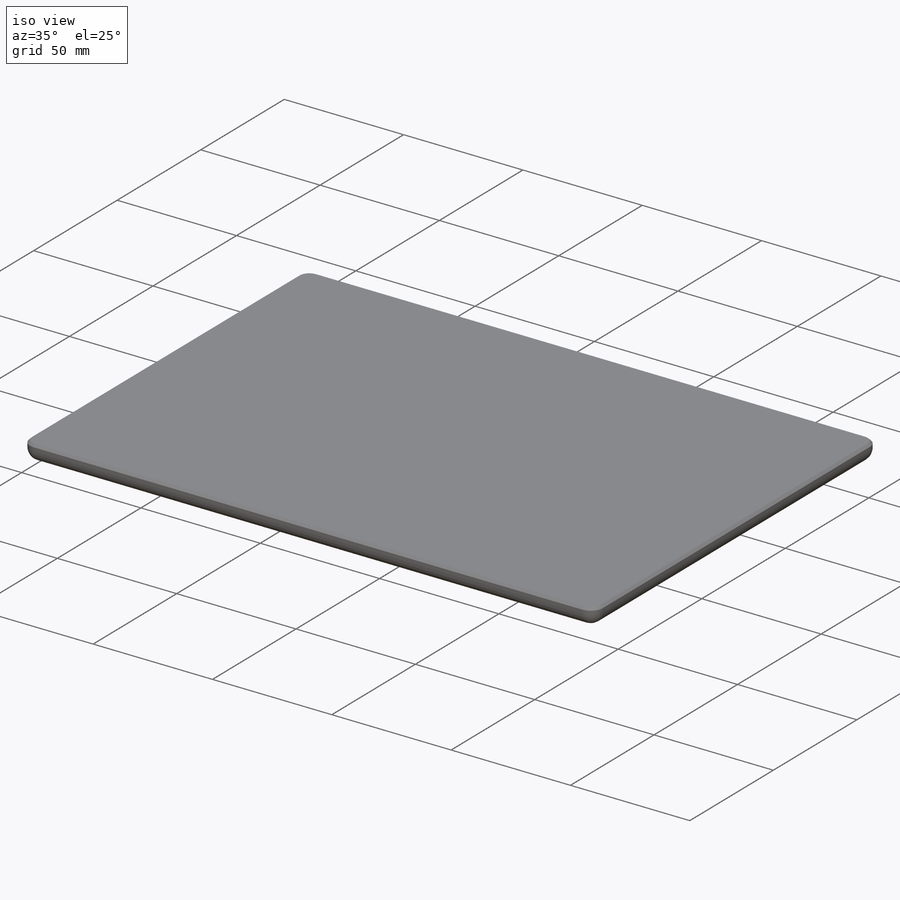
[diagram: iso view]
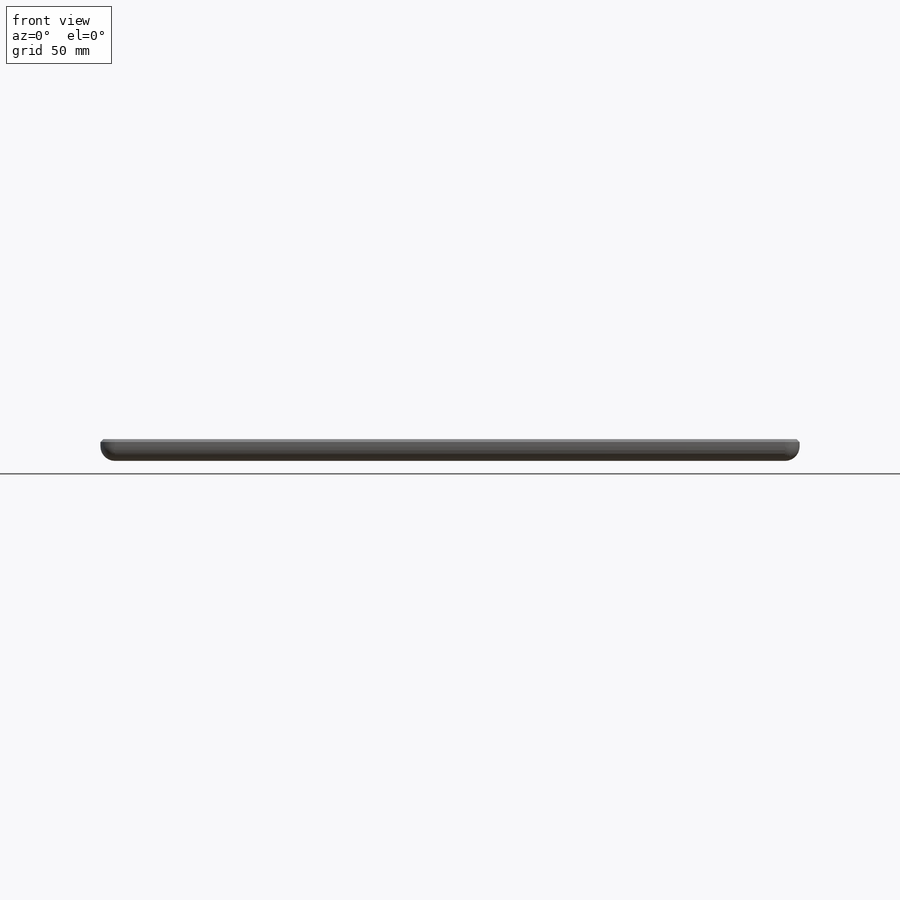
[diagram: front view]
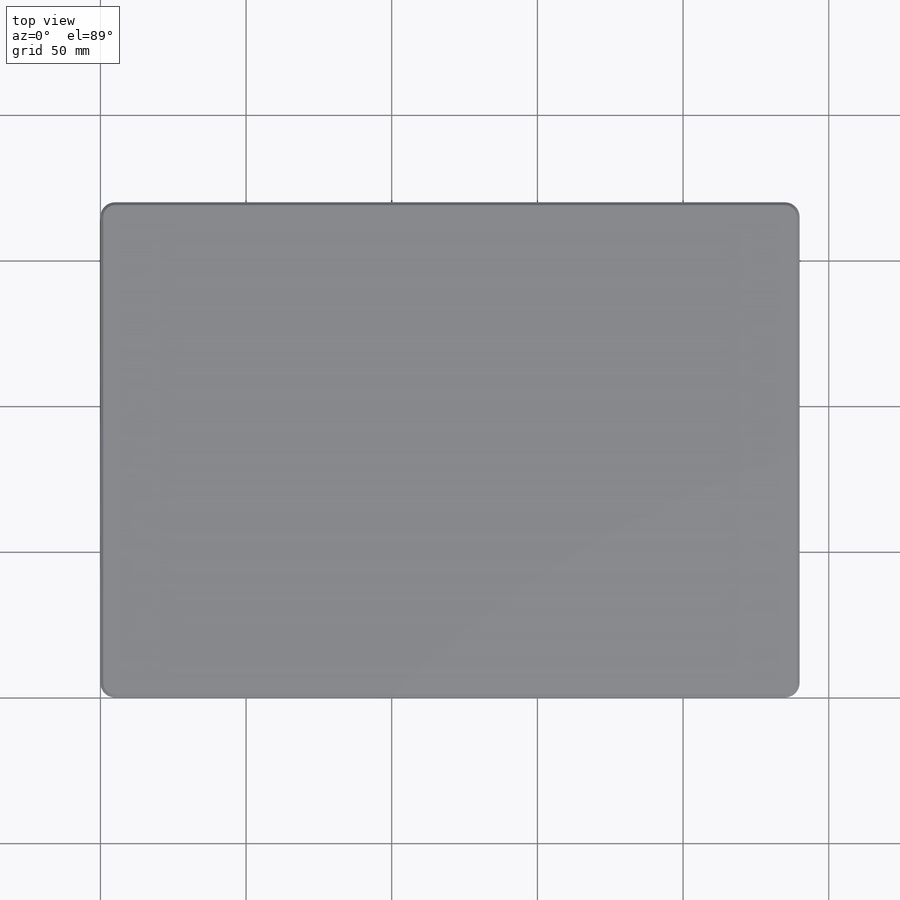
[diagram: top view]
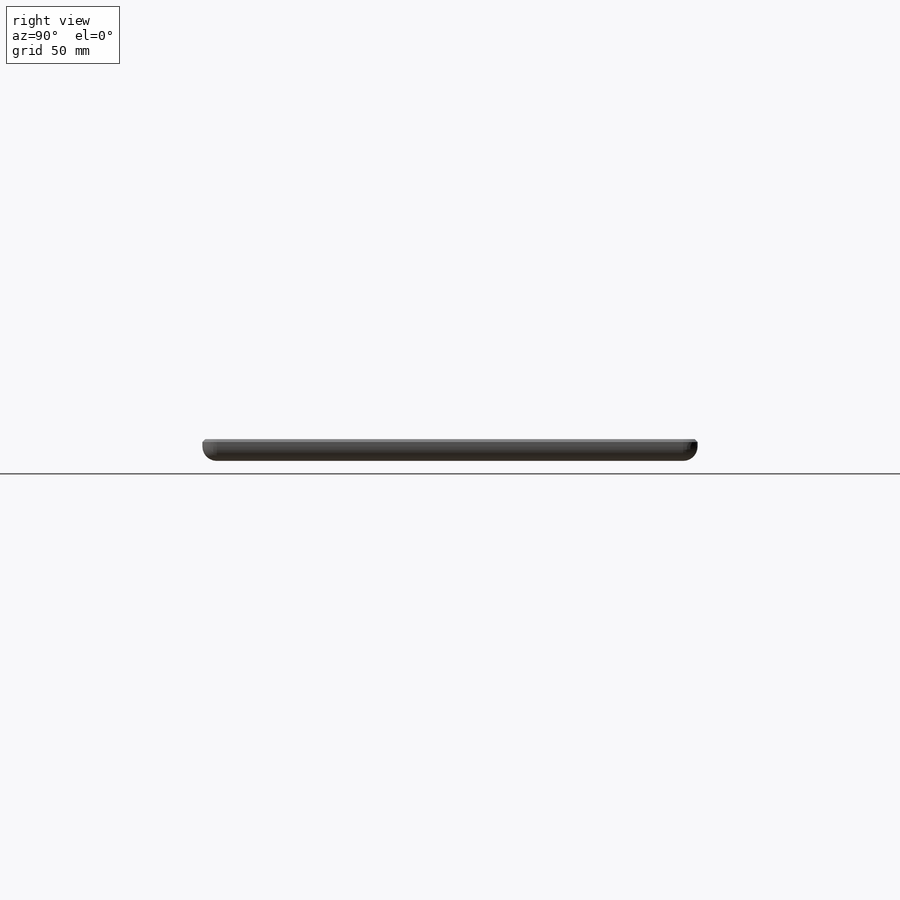
[diagram: right view]
SOLIDWORKS PART (.sldprt)
format: sldprt  version: not decoded by parser v0  size: 234,496 bytes
history: native  units: mm
features: chamfer x31, sketch x2, material x1, extrude x1, fillet x1, cut_extrude x1 (+13 scaffold rows collapsed)
feature tree (50):
  scaffold x13  (default folders/planes/origin — collapsed)
  material  "Material <not specified>"
  sketch  "Sketch1"  dims[D3=5.0mm D1=240.0mm D2=170.0mm]
  extrude  "Boss-Extrude1"  Depth=7.5mm
  fillet  "Fillet1"  Radius=5mm
  chamfer  "Chamfer1"  Distance=1mm Angle=45deg
  sketch  "Sketch2"  dims[D1=21.0mm D2=10.5mm D3=10.5mm D4=21.0mm]
  cut_extrude  "Cut-Extrude1"  Depth=0.0001mm flange_len_value=0 Associativity_IDs=0deg
  chamfer  "9b49342a-2f82-4be9-a8e4-6dbd97bb75a2"  Distance=0 Angle=0deg Associativity_IDs=0deg flange_len_value=0
  chamfer  "3571d2de-035d-41aa-9891-90316f39d9e1"  Distance=0 Angle=0deg Associativity_IDs=0deg flange_len_value=0
  chamfer  "6b12bcbd-b5c1-4cc2-ad03-a5688bf13e49"  Distance=0 Angle=0deg Associativity_IDs=0deg flange_len_value=0
  chamfer  "158e038f-1ca3-440d-9795-c50a6d61d96b"  Distance=0 Angle=0deg Associativity_IDs=0deg flange_len_value=0
  chamfer  "6ba6393d-2827-4a5a-915f-581c9c579bc4"  Distance=0 Angle=0deg Associativity_IDs=0deg flange_len_value=0
  chamfer  "29e6a809-004f-4f77-8be9-95e974ac6961"  Distance=0 Angle=0deg Associativity_IDs=0deg flange_len_value=0
  chamfer  "db06bbbe-f93c-4fd2-9ff2-f93fa73b47d1"  Distance=0 Angle=0deg Associativity_IDs=0deg flange_len_value=0
  chamfer  "f589590b-be78-4489-8958-7053add54a03"  Distance=0 Angle=0deg Associativity_IDs=0deg flange_len_value=0
  chamfer  "f200192b-53c1-4509-a723-f5956d9a51c6"  Distance=0 Angle=0deg Associativity_IDs=0deg flange_len_value=0
  chamfer  "c3476956-7127-4fd9-8881-9e49bc9a1dbb"  Distance=0 Angle=0deg Associativity_IDs=0deg flange_len_value=0
  chamfer  "da38a12b-ba06-43c6-ba12-d9ad14b9009b"  Distance=0 Angle=0deg Associativity_IDs=0deg flange_len_value=0
  chamfer  "59cedf92-153d-499d-88a4-741a7c61e4d5"  Distance=0 Angle=0deg Associativity_IDs=0deg flange_len_value=0
  chamfer  "32e2f266-48c7-4daa-9dd4-513bad248908"  Distance=0 Angle=0deg Associativity_IDs=0deg flange_len_value=0
  chamfer  "d76dc2bf-55b5-446d-8c46-adbdcda276e9"  Distance=0 Angle=0deg Associativity_IDs=0deg flange_len_value=0
  chamfer  "054114f2-47b2-49fb-8f07-c5ba132c7e8c"  Distance=0 Angle=0deg Associativity_IDs=0deg flange_len_value=0
  chamfer  "6f454247-dac8-475b-a160-6992f38b50f4"  Distance=0 Angle=0deg Associativity_IDs=0deg flange_len_value=0
  chamfer  "dfdcdc01-fb38-453d-a1ea-f25a5bcaf37d"  Distance=0 Angle=0deg Associativity_IDs=0deg flange_len_value=0
  chamfer  "3eb4390d-5727-4c29-a675-542121052244"  Distance=0 Angle=0deg Associativity_IDs=0deg flange_len_value=0
  chamfer  "41d82164-49e3-4fcd-bff4-036a09a9fdbc"  Distance=0 Angle=0deg Associativity_IDs=0deg flange_len_value=0
  chamfer  "188a1e86-331e-44d1-ab86-a2af7e4ab276"  Distance=0 Angle=0deg Associativity_IDs=0deg flange_len_value=0
  chamfer  "78966dc8-2581-47f5-b224-b83bbe0dd92b"  Distance=0 Angle=0deg Associativity_IDs=0deg flange_len_value=0
  chamfer  "03653b0d-76bc-4754-9e0c-979932c79dcc"  Distance=0 Angle=0deg Associativity_IDs=0deg flange_len_value=0
  chamfer  "ca98c70f-2d5f-4de0-8ab1-424665a5a877"  Distance=0 Angle=0deg Associativity_IDs=0deg flange_len_value=0
  chamfer  "dae62a0c-7189-48a3-a315-485643689df0"  Distance=0 Angle=0deg Associativity_IDs=0deg flange_len_value=0
  chamfer  "1bece329-f3a8-4002-a14c-5ee1a8308adb"  Distance=0 Angle=0deg Associativity_IDs=0deg flange_len_value=0
  chamfer  "f14d834d-66b9-46cf-b48a-1c85627697b5"  Distance=0 Angle=0deg Associativity_IDs=0deg flange_len_value=0
  chamfer  "46d49355-0812-4784-aa78-0ffdb304392b"  Distance=0 Angle=0deg Associativity_IDs=0deg flange_len_value=0
  chamfer  "3a8b3526-68b0-4b02-8c41-7dc08a9c0bfc"  Distance=0 Angle=0deg Associativity_IDs=0deg flange_len_value=0
  chamfer  "779cdd5d-2031-4538-8f84-ebbd8216780b"  Distance=0 Angle=0deg Associativity_IDs=0deg flange_len_value=0
  chamfer  "ca690f84-6a36-49bc-ae8c-adc7fdc68842"  Distance=0 Angle=0deg Associativity_IDs=0deg flange_len_value=0
decode coverage: 36 of 36 modeling features carry decoded parameters
note: suppression state not decoded; provenance and decode notes live in map.json
